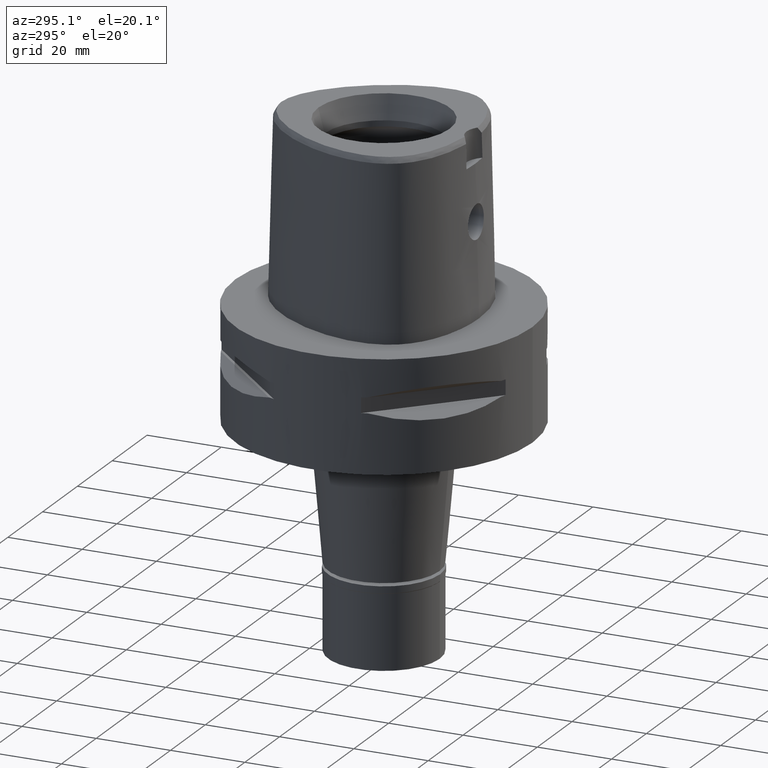
[diagram: clean part render]
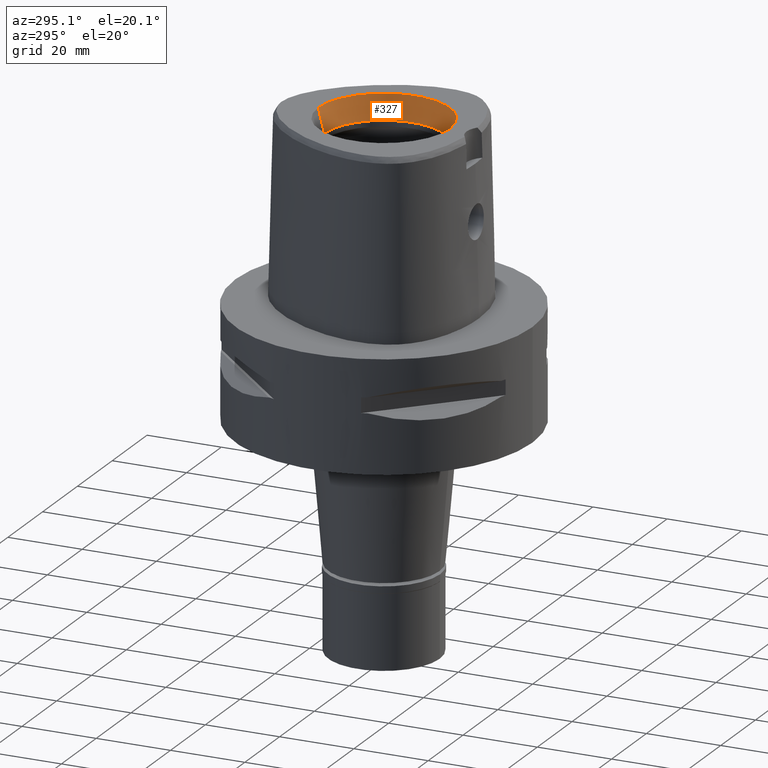
[diagram: same view with one face highlighted and labeled with its STEP entity id]
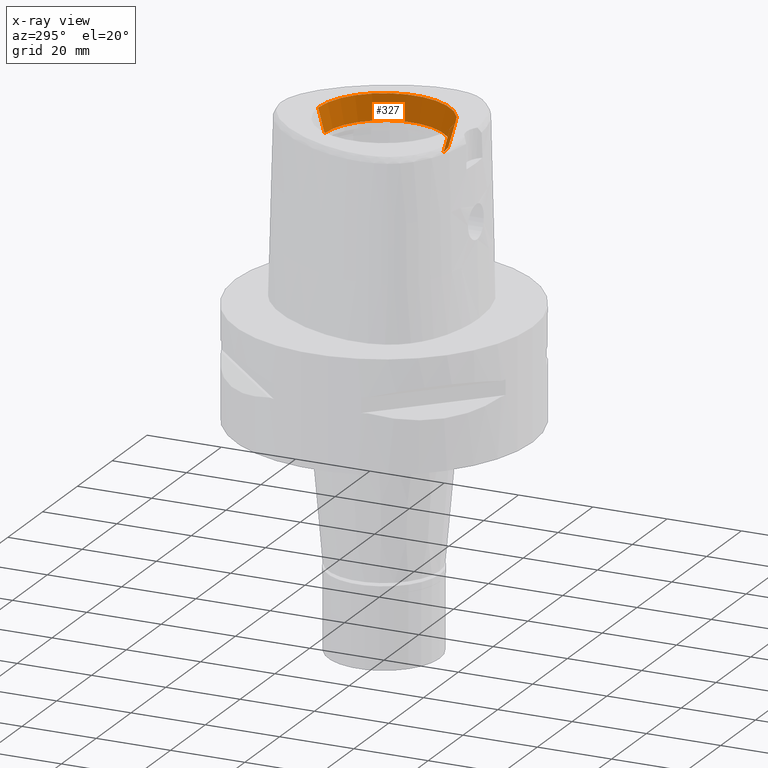
[diagram: x-ray of the same camera — body ghosted, the highlighted face saturated]
A machine part, auxiliary view. The second image highlights one B-rep face of the part: STEP entity #327.
The next image is the same camera in x-ray: the body ghosted, the highlighted face saturated — about 0% of this face is hidden behind the body in this view.
In plain terms, the highlighted conical surface has half-angle 15 deg.
Its self-contained STEP definition (entity closure, byte-faithful):
#110 = CARTESIAN_POINT ( 'NONE',  ( 0.0000000000000000000, -16.00000000000000000, 41.60000000000000142 ) ) ;
#147 = VERTEX_POINT ( 'NONE', #4336 ) ;
#178 = ORIENTED_EDGE ( 'NONE', *, *, #2833, .T. ) ;
#181 = LINE ( 'NONE', #606, #1038 ) ;
#255 = CIRCLE ( 'NONE', #3839, 16.00000000000000000 ) ;
#307 = ORIENTED_EDGE ( 'NONE', *, *, #396, .T. ) ;
#327 = ADVANCED_FACE ( 'NONE', ( #1474 ), #1131, .F. ) ;
#396 = EDGE_CURVE ( 'NONE', #3371, #717, #181, .T. ) ;
#465 = CARTESIAN_POINT ( 'NONE',  ( 0.0000000000000000000, 0.0000000000000000000, 48.00000000000000000 ) ) ;
#606 = CARTESIAN_POINT ( 'NONE',  ( 0.0000000000000000000, -16.00000000000000000, 41.60000000000000142 ) ) ;
#648 = LINE ( 'NONE', #1435, #1738 ) ;
#693 = DIRECTION ( 'NONE',  ( 0.0000000000000000000, 0.0000000000000000000, 1.000000000000000000 ) ) ;
#717 = VERTEX_POINT ( 'NONE', #4051 ) ;
#793 = AXIS2_PLACEMENT_3D ( 'NONE', #3067, #693, #1370 ) ;
#880 = DIRECTION ( 'NONE',  ( 0.0000000000000000000, -1.000000000000000000, 0.0000000000000000000 ) ) ;
#1038 = VECTOR ( 'NONE', #3368, 1000.000000000000000 ) ;
#1131 = CONICAL_SURFACE ( 'NONE', #793, 16.85743741578000154, 0.2617993877991000029 ) ;
#1276 = CARTESIAN_POINT ( 'NONE',  ( 0.0000000000000000000, 0.0000000000000000000, 41.60000000000000142 ) ) ;
#1370 = DIRECTION ( 'NONE',  ( 0.0000000000000000000, 1.000000000000000000, 0.0000000000000000000 ) ) ;
#1372 = VERTEX_POINT ( 'NONE', #1766 ) ;
#1404 = ORIENTED_EDGE ( 'NONE', *, *, #1921, .F. ) ;
#1435 = CARTESIAN_POINT ( 'NONE',  ( 0.0000000000000000000, 16.00000000000000000, 41.60000000000000142 ) ) ;
#1474 = FACE_OUTER_BOUND ( 'NONE', #2499, .T. ) ;
#1738 = VECTOR ( 'NONE', #2729, 1000.000000000000000 ) ;
#1766 = CARTESIAN_POINT ( 'NONE',  ( 0.0000000000000000000, 16.00000000000000000, 41.60000000000000142 ) ) ;
#1921 = EDGE_CURVE ( 'NONE', #1372, #147, #648, .T. ) ;
#1970 = DIRECTION ( 'NONE',  ( 0.0000000000000000000, -1.000000000000000000, 0.0000000000000000000 ) ) ;
#2011 = AXIS2_PLACEMENT_3D ( 'NONE', #465, #2392, #1970 ) ;
#2162 = CIRCLE ( 'NONE', #2011, 17.71487483155999954 ) ;
#2392 = DIRECTION ( 'NONE',  ( 0.0000000000000000000, 0.0000000000000000000, 1.000000000000000000 ) ) ;
#2499 = EDGE_LOOP ( 'NONE', ( #1404, #2638, #307, #178 ) ) ;
#2638 = ORIENTED_EDGE ( 'NONE', *, *, #5118, .F. ) ;
#2729 = DIRECTION ( 'NONE',  ( 0.0000000000000000000, 0.2588190451025869088, 0.9659258262890505486 ) ) ;
#2833 = EDGE_CURVE ( 'NONE', #717, #147, #2162, .T. ) ;
#2874 = DIRECTION ( 'NONE',  ( 0.0000000000000000000, 0.0000000000000000000, 1.000000000000000000 ) ) ;
#3067 = CARTESIAN_POINT ( 'NONE',  ( 0.0000000000000000000, 0.0000000000000000000, 44.79999999999999716 ) ) ;
#3368 = DIRECTION ( 'NONE',  ( 0.0000000000000000000, -0.2588190451025869088, 0.9659258262890505486 ) ) ;
#3371 = VERTEX_POINT ( 'NONE', #110 ) ;
#3839 = AXIS2_PLACEMENT_3D ( 'NONE', #1276, #2874, #880 ) ;
#4051 = CARTESIAN_POINT ( 'NONE',  ( 0.0000000000000000000, -17.71487483155999954, 48.00000000000000000 ) ) ;
#4336 = CARTESIAN_POINT ( 'NONE',  ( 0.0000000000000000000, 17.71487483155999954, 48.00000000000000000 ) ) ;
#5118 = EDGE_CURVE ( 'NONE', #3371, #1372, #255, .T. ) ;